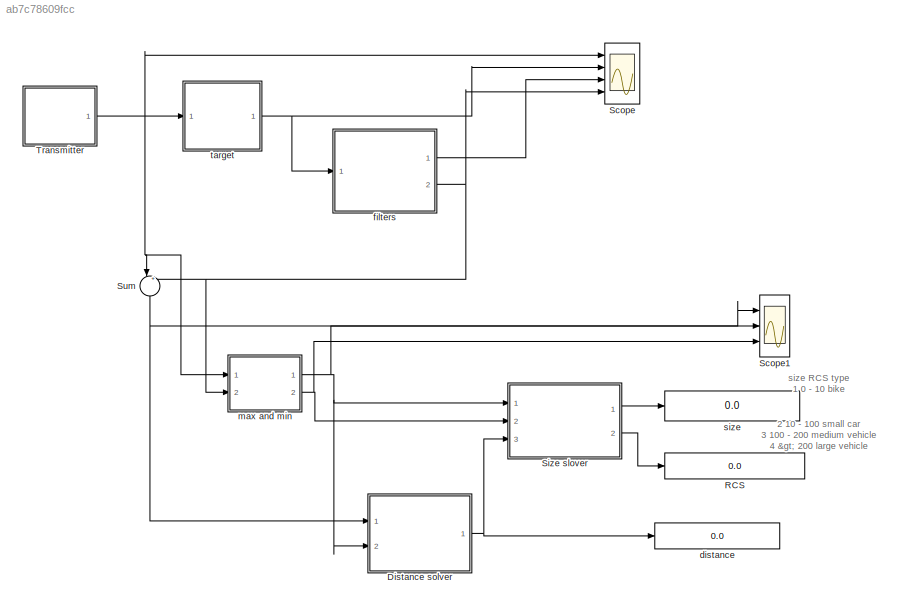
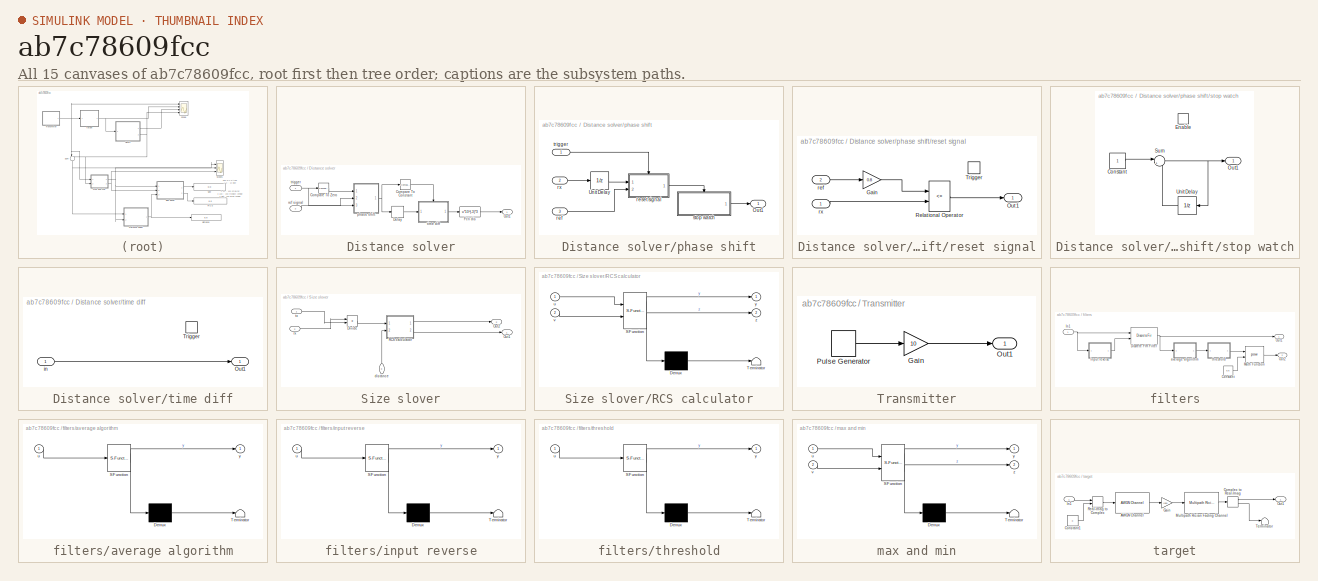
[diagram: thumbnail index - all 15 canvases of the model, root first then tree order]
MODEL slx_ab7c78609fcc
KIND model
CONFIG AbsTol = auto
CONFIG EnableMultiTasking = on
CONFIG FixedStep = 2*10^(-11)
CONFIG MaxStep = auto
CONFIG MinStep = auto
CONFIG RelTol = 1e-3
CONFIG SampleTimeConstraint = Unconstrained
CONFIG Solver = FixedStepAuto
CONFIG SolverName = FixedStepAuto
CONFIG StartTime = 0.0
CONFIG StopTime = 2e-6
BLOCK [SubSystem] Distance solver
  Ports = [2, 1]
  RequestExecContextInheritance = off
  Variant = off
BLOCK [Reference] Distance solver/Compare To Constant  REF=simulink/Logic and Bit
Operations/Compare
To Constant
  Ports = [1, 1]
  SourceBlock = simulink/Logic and Bit\nOperations/Compare\nTo Constant
  SourceType = Compare To Constant
BLOCK [Reference] Distance solver/Compare To Zero  REF=simulink/Logic and Bit
Operations/Compare
To Zero
  Ports = [1, 1]
  SourceBlock = simulink/Logic and Bit\nOperations/Compare\nTo Zero
  SourceType = Compare To Zero
BLOCK [Delay] Distance solver/Delay
  DelayLength = 1
  InitialCondition = 0
  InputPortMap = u0
  Ports = [1, 1]
BLOCK [Fcn] Distance solver/Fcn dis
  Expr = u*10^(-3)*3
BLOCK [Outport] Distance solver/Out1
  IconDisplay = Port number
BLOCK [SubSystem] Distance solver/phase shift
  Ports = [3, 1]
  RequestExecContextInheritance = off
  Variant = off
BLOCK [Outport] Distance solver/phase shift/Out1
  IconDisplay = Port number
BLOCK [UnitDelay] Distance solver/phase shift/Unit Delay
  InputProcessing = Elements as channels (sample based)
  SampleTime = -1
BLOCK [Inport] Distance solver/phase shift/ref
  IconDisplay = Port number
  Port = 3
BLOCK [SubSystem] Distance solver/phase shift/reset signal
  Ports = [2, 1, 0, 1]
  RequestExecContextInheritance = off
  TreatAsAtomicUnit = on
  Variant = off
BLOCK [Gain] Distance solver/phase shift/reset signal/Gain
  Gain = 0.8
  OutDataTypeStr = Inherit: Inherit via internal rule
  ParamDataTypeStr = Inherit: Inherit via internal rule
  SaturateOnIntegerOverflow = off
BLOCK [Outport] Distance solver/phase shift/reset signal/Out1
  IconDisplay = Port number
BLOCK [RelationalOperator] Distance solver/phase shift/reset signal/Relational Operator
  InputSameDT = off
  Operator = <=
  OutDataTypeStr = boolean
  Ports = [2, 1]
BLOCK [TriggerPort] Distance solver/phase shift/reset signal/Trigger
  Ports = []
  StatesWhenEnabling = held
  TriggerType = falling
  VariantControl = Variant
BLOCK [Inport] Distance solver/phase shift/reset signal/ref
  IconDisplay = Port number
  Port = 2
BLOCK [Inport] Distance solver/phase shift/reset signal/rx
  IconDisplay = Port number
BLOCK [Inport] Distance solver/phase shift/rx
  IconDisplay = Port number
  Port = 2
BLOCK [SubSystem] Distance solver/phase shift/stop watch
  Ports = [0, 1, 1]
  RequestExecContextInheritance = off
  TreatAsAtomicUnit = on
  Variant = off
BLOCK [Constant] Distance solver/phase shift/stop watch/Constant
BLOCK [EnablePort] Distance solver/phase shift/stop watch/Enable
  Ports = []
  StatesWhenEnabling = reset
BLOCK [Outport] Distance solver/phase shift/stop watch/Out1
  IconDisplay = Port number
BLOCK [Sum] Distance solver/phase shift/stop watch/Sum
  IconShape = round
  InputSameDT = off
  Inputs = |++
  OutDataTypeStr = Inherit: Inherit via internal rule
  Ports = [2, 1]
  SaturateOnIntegerOverflow = off
BLOCK [UnitDelay] Distance solver/phase shift/stop watch/Unit Delay
  InputProcessing = Elements as channels (sample based)
  SampleTime = -1
BLOCK [Inport] Distance solver/phase shift/trigger
  IconDisplay = Port number
BLOCK [Inport] Distance solver/ref signal
  IconDisplay = Port number
  Port = 2
BLOCK [SubSystem] Distance solver/time diff
  Ports = [1, 1, 0, 1]
  RequestExecContextInheritance = off
  TreatAsAtomicUnit = on
  Variant = off
BLOCK [Outport] Distance solver/time diff/Out1
  IconDisplay = Port number
BLOCK [TriggerPort] Distance solver/time diff/Trigger
  Ports = []
  StatesWhenEnabling = held
  VariantControl = Variant
  ZeroCross = off
BLOCK [Inport] Distance solver/time diff/in
  IconDisplay = Port number
BLOCK [Inport] Distance solver/trigger
  IconDisplay = Port number
BLOCK [Display] RCS
  Decimation = 1
  Ports = [1]
BLOCK [Scope] Scope
  NumInputPorts = 4
  Ports = [4]
  ScopeSpecificationString = Simulink.scopes.TimeScopeBlockCfg('CurrentConfiguration', extmgr.ConfigurationSet(extmgr.Configuration('Core','General UI',true),extmgr.Configuration('Core','Source UI',true),extmgr.Configuration('Sources','WiredSimulink',true,'DataLoggingSaveFormat','Array','DataLoggingDecimation','1','DataLoggingDecimateData',true),extmgr.Configuration('Visuals','Time Domain',true,'SerializedDisplays',{struct('M...<+3680ch>
BLOCK [Scope] Scope1
  NumInputPorts = 3
  Ports = [3]
  ScopeSpecificationString = Simulink.scopes.TimeScopeBlockCfg('CurrentConfiguration', extmgr.ConfigurationSet(extmgr.Configuration('Core','General UI',true),extmgr.Configuration('Core','Source UI',true),extmgr.Configuration('Sources','WiredSimulink',true,'DataLoggingVariableName','ScopeData1'),extmgr.Configuration('Visuals','Time Domain',true,'SerializedDisplays',{struct('MinYLimReal','-0.005','MaxYLimReal','0.045','YLabelRe...<+2771ch>
BLOCK [SubSystem] Size slover
  Ports = [3, 2]
  RequestExecContextInheritance = off
  Variant = off
BLOCK [Product] Size slover/Divide
  InputSameDT = off
  Inputs = */
  OutDataTypeStr = Inherit: Inherit via internal rule
  Ports = [2, 1]
  RndMeth = Floor
  SaturateOnIntegerOverflow = off
BLOCK [Outport] Size slover/Out1
  IconDisplay = Port number
BLOCK [Outport] Size slover/Out2
  IconDisplay = Port number
  Port = 2
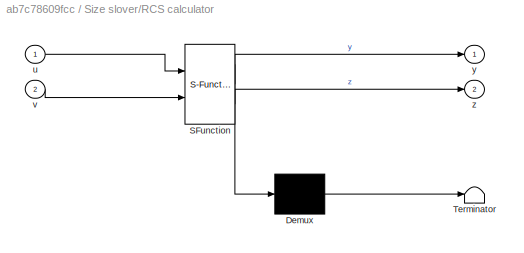
BLOCK [SubSystem] Size slover/RCS calculator
  ErrorFcn = Stateflow.Translate.translate
  PermitHierarchicalResolution = ExplicitOnly
  Ports = [2, 2]
  RequestExecContextInheritance = off
  SFBlockType = MATLAB Function
  TreatAsAtomicUnit = on
  Variant = off
BLOCK [Demux] Size slover/RCS calculator/ Demux 
  Outputs = 1
  Ports = [1, 1]
BLOCK [S-Function] Size slover/RCS calculator/ SFunction 
  EnableBusSupport = on
  FunctionName = sf_sfun
  PortCounts = [2 3]
  Ports = [2, 3]
  SFcnIsStateOwnerBlock = off
  SFunctionDeploymentMode = off
  Tag = Stateflow S-Function TP_target_rect 5
BLOCK [Terminator] Size slover/RCS calculator/ Terminator 
BLOCK [Inport] Size slover/RCS calculator/u
  IconDisplay = Port number
BLOCK [Inport] Size slover/RCS calculator/v
  IconDisplay = Port number
  Port = 2
BLOCK [Outport] Size slover/RCS calculator/y
  IconDisplay = Port number
BLOCK [Outport] Size slover/RCS calculator/z
  IconDisplay = Port number
  Port = 2
BLOCK [Inport] Size slover/distance
  IconDisplay = Port number
  Port = 3
BLOCK [Inport] Size slover/rx
  IconDisplay = Port number
  Port = 2
BLOCK [Inport] Size slover/tx
  IconDisplay = Port number
BLOCK [Sum] Sum
  IconShape = round
  InputSameDT = off
  Inputs = |++
  OutDataTypeStr = Inherit: Inherit via internal rule
  Ports = [2, 1]
  SaturateOnIntegerOverflow = off
BLOCK [SubSystem] Transmitter
  Ports = [0, 1]
  RequestExecContextInheritance = off
  Variant = off
BLOCK [Gain] Transmitter/Gain
  Gain = 10
  OutDataTypeStr = Inherit: Inherit via internal rule
  ParamDataTypeStr = Inherit: Inherit via internal rule
  SaturateOnIntegerOverflow = off
BLOCK [Outport] Transmitter/Out1
  IconDisplay = Port number
BLOCK [DiscretePulseGenerator] Transmitter/Pulse Generator
  Amplitude = 0.004
  Period = 10000
  Ports = [0, 1]
  PulseWidth = 50
  SampleTime = 2e-11
BLOCK [Display] distance
  Decimation = 1
  Ports = [1]
BLOCK [SubSystem] filters
  Ports = [1, 2]
  RequestExecContextInheritance = off
  Variant = off
BLOCK [Constant] filters/Constant
  Value = 0.5
BLOCK [DiscreteFir] filters/Discrete FIR Filter
  CoefSource = Input port
  Coefficients = [1 1 1 1 1 1]
  InputPortMap = u0,u1
  InputProcessing = Columns as channels (frame based)
  OutputPortMap = o0
  Ports = [2, 1]
BLOCK [Inport] filters/In1
  IconDisplay = Port number
BLOCK [Math] filters/Math Function
  Operator = pow
  Ports = [2, 1]
BLOCK [Outport] filters/Out1
  IconDisplay = Port number
BLOCK [Outport] filters/Out2
  IconDisplay = Port number
  Port = 2
BLOCK [SubSystem] filters/average algorithm
  ErrorFcn = Stateflow.Translate.translate
  PermitHierarchicalResolution = ExplicitOnly
  Ports = [1, 1]
  RequestExecContextInheritance = off
  SFBlockType = MATLAB Function
  TreatAsAtomicUnit = on
  Variant = off
BLOCK [Demux] filters/average algorithm/ Demux 
  Outputs = 1
  Ports = [1, 1]
BLOCK [S-Function] filters/average algorithm/ SFunction 
  EnableBusSupport = on
  FunctionName = sf_sfun
  PortCounts = [1 2]
  Ports = [1, 2]
  SFcnIsStateOwnerBlock = off
  SFunctionDeploymentMode = off
  Tag = Stateflow S-Function TP_target_rect 1
BLOCK [Terminator] filters/average algorithm/ Terminator 
BLOCK [Inport] filters/average algorithm/u
  IconDisplay = Port number
BLOCK [Outport] filters/average algorithm/y
  IconDisplay = Port number
BLOCK [SubSystem] filters/input reverse
  ErrorFcn = Stateflow.Translate.translate
  PermitHierarchicalResolution = ExplicitOnly
  Ports = [1, 1]
  RequestExecContextInheritance = off
  SFBlockType = MATLAB Function
  TreatAsAtomicUnit = on
  Variant = off
BLOCK [Demux] filters/input reverse/ Demux 
  Outputs = 1
  Ports = [1, 1]
BLOCK [S-Function] filters/input reverse/ SFunction 
  EnableBusSupport = on
  FunctionName = sf_sfun
  PortCounts = [1 2]
  Ports = [1, 2]
  SFcnIsStateOwnerBlock = off
  SFunctionDeploymentMode = off
  Tag = Stateflow S-Function TP_target_rect 2
BLOCK [Terminator] filters/input reverse/ Terminator 
BLOCK [Inport] filters/input reverse/u
  IconDisplay = Port number
BLOCK [Outport] filters/input reverse/y
  IconDisplay = Port number
BLOCK [SubSystem] filters/threshold
  ErrorFcn = Stateflow.Translate.translate
  PermitHierarchicalResolution = ExplicitOnly
  Ports = [1, 1]
  RequestExecContextInheritance = off
  SFBlockType = MATLAB Function
  TreatAsAtomicUnit = on
  Variant = off
BLOCK [Demux] filters/threshold/ Demux 
  Outputs = 1
  Ports = [1, 1]
BLOCK [S-Function] filters/threshold/ SFunction 
  EnableBusSupport = on
  FunctionName = sf_sfun
  PortCounts = [1 2]
  Ports = [1, 2]
  SFcnIsStateOwnerBlock = off
  SFunctionDeploymentMode = off
  Tag = Stateflow S-Function TP_target_rect 3
BLOCK [Terminator] filters/threshold/ Terminator 
BLOCK [Inport] filters/threshold/u
  IconDisplay = Port number
BLOCK [Outport] filters/threshold/y
  IconDisplay = Port number
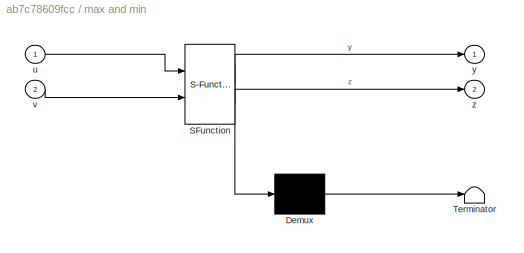
BLOCK [SubSystem] max and min
  ErrorFcn = Stateflow.Translate.translate
  PermitHierarchicalResolution = ExplicitOnly
  Ports = [2, 2]
  RequestExecContextInheritance = off
  SFBlockType = MATLAB Function
  TreatAsAtomicUnit = on
  Variant = off
BLOCK [Demux] max and min/ Demux 
  Outputs = 1
  Ports = [1, 1]
BLOCK [S-Function] max and min/ SFunction 
  EnableBusSupport = on
  FunctionName = sf_sfun
  PortCounts = [2 3]
  Ports = [2, 3]
  SFcnIsStateOwnerBlock = off
  SFunctionDeploymentMode = off
  Tag = Stateflow S-Function TP_target_rect 4
BLOCK [Terminator] max and min/ Terminator 
BLOCK [Inport] max and min/u
  IconDisplay = Port number
BLOCK [Inport] max and min/v
  IconDisplay = Port number
  Port = 2
BLOCK [Outport] max and min/y
  IconDisplay = Port number
BLOCK [Outport] max and min/z
  IconDisplay = Port number
  Port = 2
BLOCK [Display] size
  Decimation = 1
  Ports = [1]
BLOCK [SubSystem] target
  Ports = [1, 1]
  RequestExecContextInheritance = off
  Variant = off
BLOCK [Reference] target/AWGN Channel  REF=commchan3/AWGN
Channel
  Ports = [1, 1]
  SourceBlock = commchan3/AWGN\nChannel
  SourceType = AWGN Channel
  UserDataPersistent = on
BLOCK [ComplexToRealImag] target/Complex to Real-Imag
  Ports = [1, 2]
BLOCK [Constant] target/Constant1
  Value = 0
BLOCK [Gain] target/Gain
  Gain = loss
  OutDataTypeStr = Inherit: Inherit via internal rule
  ParamDataTypeStr = Inherit: Inherit via internal rule
  SaturateOnIntegerOverflow = off
BLOCK [Inport] target/In1
  IconDisplay = Port number
BLOCK [Reference] target/Multipath Rician Fading Channel  REF=commchan3/Multipath Rician
Fading Channel
  Ports = [1, 1]
  SourceBlock = commchan3/Multipath Rician\nFading Channel
  SourceType = Multipath Rician Fading Channel
BLOCK [Outport] target/Out1
  IconDisplay = Port number
BLOCK [RealImagToComplex] target/Real-Imag to Complex
  Ports = [2, 1]
BLOCK [Terminator] target/Terminator
ANNOTATION (root): size RCS type 1 0 - 10 bike 2 10 - 100 small car 3 100 - 200 medium vehicle 4 > 200 large vehicle
LINE Distance solver/Compare To Constant:1 -> Distance solver/time diff:trigger
LINE Distance solver/Compare To Zero:1 -> Distance solver/phase shift:1
LINE Distance solver/Delay:1 -> Distance solver/time diff:1
LINE Distance solver/Fcn dis:1 -> Distance solver/Out1:1
LINE Distance solver/phase shift/Unit Delay:1 -> Distance solver/phase shift/reset signal:1
LINE Distance solver/phase shift/ref:1 -> Distance solver/phase shift/reset signal:2
LINE Distance solver/phase shift/reset signal/Gain:1 -> Distance solver/phase shift/reset signal/Relational Operator:1
LINE Distance solver/phase shift/reset signal/Relational Operator:1 -> Distance solver/phase shift/reset signal/Out1:1
LINE Distance solver/phase shift/reset signal/ref:1 -> Distance solver/phase shift/reset signal/Gain:1
LINE Distance solver/phase shift/reset signal/rx:1 -> Distance solver/phase shift/reset signal/Relational Operator:2
LINE Distance solver/phase shift/reset signal:1 -> Distance solver/phase shift/stop watch:enable
LINE Distance solver/phase shift/rx:1 -> Distance solver/phase shift/Unit Delay:1
LINE Distance solver/phase shift/stop watch/Constant:1 -> Distance solver/phase shift/stop watch/Sum:1
NET Distance solver/phase shift/stop watch/Sum:1 -> Distance solver/phase shift/stop watch/Out1:1, Distance solver/phase shift/stop watch/Unit Delay:1
LINE Distance solver/phase shift/stop watch/Unit Delay:1 -> Distance solver/phase shift/stop watch/Sum:2
LINE Distance solver/phase shift/stop watch:1 -> Distance solver/phase shift/Out1:1
LINE Distance solver/phase shift/trigger:1 -> Distance solver/phase shift/reset signal:trigger
NET Distance solver/phase shift:1 -> Distance solver/Compare To Constant:1, Distance solver/Delay:1
LINE Distance solver/ref signal:1 -> Distance solver/phase shift:3
LINE Distance solver/time diff/in:1 -> Distance solver/time diff/Out1:1
LINE Distance solver/time diff:1 -> Distance solver/Fcn dis:1
NET Distance solver/trigger:1 -> Distance solver/Compare To Zero:1, Distance solver/phase shift:2
NET Distance solver:1 -> Size slover:3, distance:1
LINE Size slover/Divide:1 -> Size slover/RCS calculator:1
LINE Size slover/RCS calculator:1 -> Size slover/Out2:1
LINE Size slover/RCS calculator:2 -> Size slover/Out1:1
LINE Size slover/distance:1 -> Size slover/RCS calculator:2
LINE Size slover/rx:1 -> Size slover/Divide:1
LINE Size slover/tx:1 -> Size slover/Divide:2
LINE Size slover:1 -> size:1
LINE Size slover:2 -> RCS:1
NET Sum:1 -> Distance solver:1, Scope1:1
LINE Transmitter/Gain:1 -> Transmitter/Out1:1
LINE Transmitter/Pulse Generator:1 -> Transmitter/Gain:1
NET Transmitter:1 -> Scope:1, Sum:1, max and min:1, target:1
LINE filters/Constant:1 -> filters/Math Function:2
NET filters/Discrete FIR Filter:1 -> filters/Out1:1, filters/average algorithm:1
NET filters/In1:1 -> filters/Discrete FIR Filter:1, filters/input reverse:1
LINE filters/Math Function:1 -> filters/Out2:1
LINE filters/average algorithm:1 -> filters/threshold:1
LINE filters/input reverse:1 -> filters/Discrete FIR Filter:2
LINE filters/threshold:1 -> filters/Math Function:1
LINE filters:1 -> Scope:3
NET filters:2 -> Scope:4, Sum:2, max and min:2
NET max and min:1 -> Distance solver:2, Scope1:2, Size slover:1
NET max and min:2 -> Scope1:3, Size slover:2
LINE target/AWGN Channel:1 -> target/Gain:1
LINE target/Complex to Real-Imag:1 -> target/Out1:1
LINE target/Complex to Real-Imag:2 -> target/Terminator:1
LINE target/Constant1:1 -> target/Real-Imag to Complex:2
LINE target/Gain:1 -> target/Multipath Rician Fading Channel:1
LINE target/In1:1 -> target/Real-Imag to Complex:1
LINE target/Multipath Rician Fading Channel:1 -> target/Complex to Real-Imag:1
LINE target/Real-Imag to Complex:1 -> target/AWGN Channel:1
NET target:1 -> Scope:2, filters:1
note: NET lines group one-source signal fan-out (src -> all destinations, sorted); 1:1 wires keep LINE
CHART filters/average algorithm states=1 transitions=1
  STATE_LABEL 'eML_blk_kernel()'
  STATE_LABEL 'SCRIPT:\nfunction y = fcn(u)\n%#codegen\npersistent summ;\npersistent maxm;\nn = 200;\n\nif isempty(maxm)\n    maxm = -1;\nend\n\nif isempty(summ)\n    summ = zeros(1,n);\nend\n\nif u > max(summ)\n    maxm = u;\nend\n\nif (u < 0.5*maxm)\n    y = 0;\nelse\n    summ = circshift(summ,[0,1]);\n    summ(1) = u;\n    y = sum(summ) / n;\nend\n'
CHART filters/input reverse states=1 transitions=1
  STATE_LABEL 'eML_blk_kernel()'
  STATE_LABEL 'SCRIPT:\nfunction y = fcn(u)\n%#codegen\n\ny = u(end:-1:1);'
CHART filters/threshold states=1 transitions=1
  STATE_LABEL 'eML_blk_kernel()'
  STATE_LABEL 'SCRIPT:\nfunction y = fcn(u)\n%#codegen\npersistent maxm;\n\nif isempty(maxm)\n    maxm = -1;\nend\n\nif u > maxm\n    maxm = u;\nend\n\nif u > (maxm * 2/3)\n    y = u;\nelse\n    y = 0;\nend'
CHART max and min states=1 transitions=1
  STATE_LABEL 'eML_blk_kernel()'
  STATE_LABEL 'SCRIPT:\nfunction [y,z] = fcn(u,v)\n%#codegen\npersistent maxm;\npersistent minm;\n\nif isempty(maxm)\n    maxm = -1;\nend\n\nif isempty(minm)\n    minm = -1;\nend\n\nif u > 0\n    maxm = u;\nend\n\nif v > 0\n    minm = v;\nend\n\ny = maxm;\nz = minm;'
CHART Size slover/RCS calculator states=1 transitions=1
  STATE_LABEL 'eML_blk_kernel()'
  STATE_LABEL "SCRIPT:\nfunction [y,z] = fcn(u,v)\n%#codegen\nG = 10;\nw = 0.3;\ny = 1.69 * u * ((4 * pi)^3 * v^4)/(G^2 *  w^2);\nif y < 10\n    z = 1;%'bike';\nelseif y < 100\n    z = 2;%'small car';\nelseif y < 200\n    z = 3;%'SUV or small truck';\nelse\n    z = 4;%'truck';\nend"
